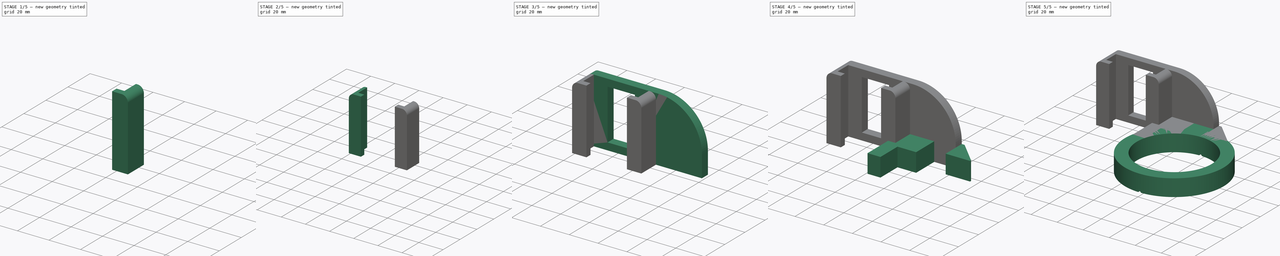
[diagram: build sequence overview — one tinted view per stage of 5, left to right]
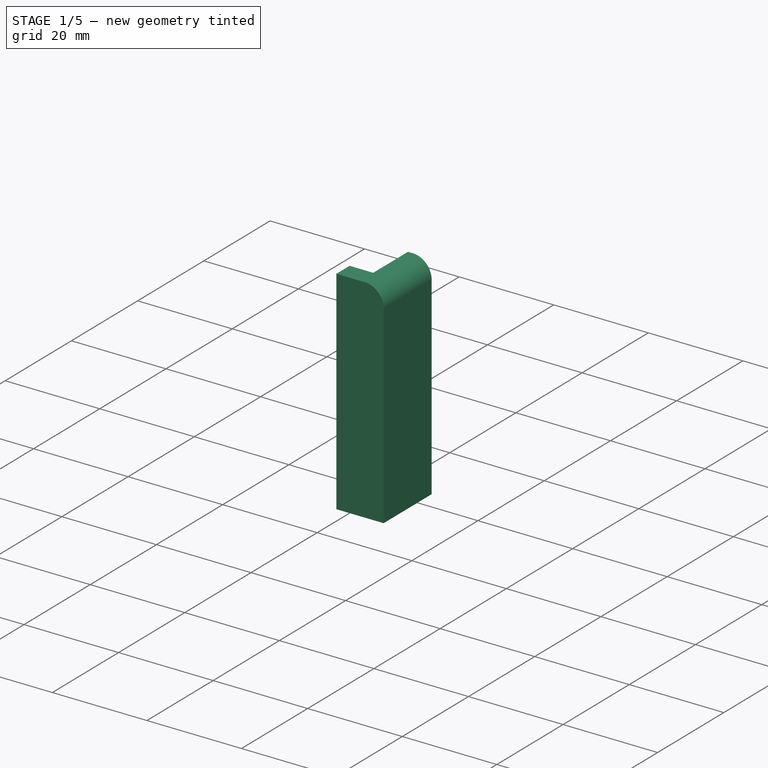
[diagram: stage 1 of 5 — iso view after this stage's code; geometry added in this stage tinted green]
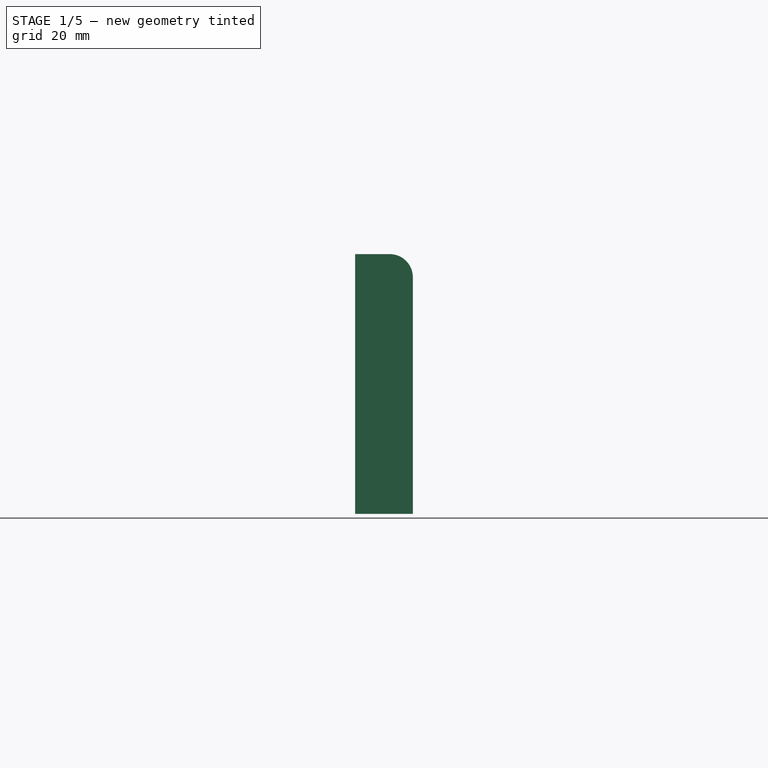
[diagram: stage 1 of 5 — front view after this stage's code; geometry added in this stage tinted green]
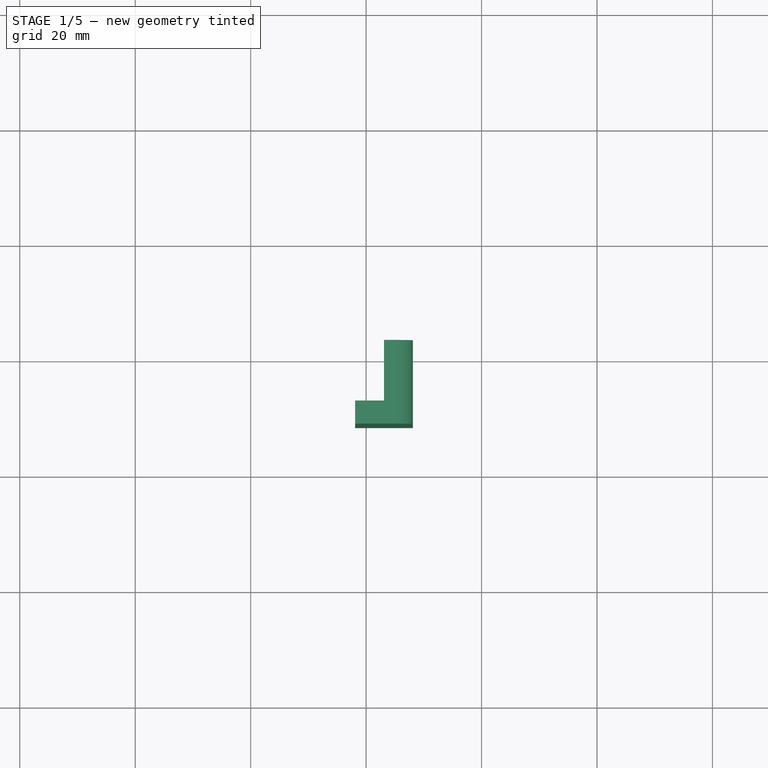
[diagram: stage 1 of 5 — top view after this stage's code; geometry added in this stage tinted green]
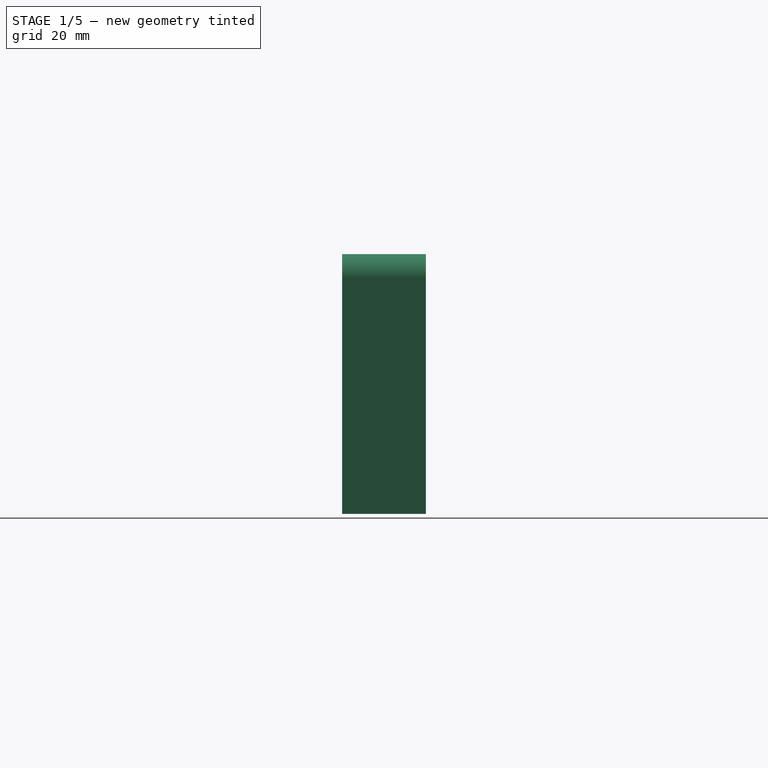
[diagram: stage 1 of 5 — right view after this stage's code; geometry added in this stage tinted green]
FCSTD DOCUMENT  (FreeCAD 0.18R16146 (Git))
Label: CL_piece10_3
License: All rights reserved
LicenseURL: http://en.wikipedia.org/wiki/All_rights_reserved
objects: Part::Box×10, Part::Fillet×6, Sketcher::SketchObject×3, PartDesign::Pocket×2, PartDesign::Pad×1, PartDesign::Body×1, Part::Cut×1, Part::Chamfer×1
note: 28 computed .brp shape members not serialized (recipe doc carries the construction recipe); baked Part::Feature solids carry a one-line shape summary decoded from their .brp

FEATURE [Part::Box] Box003  label="Cube003"
  AttacherType = Attacher::AttachEngine3D
  Height = 45
  Length = 5
  Placement = pos=(-36.9,32.5,0) rot=(0,0,1;0rad)
  Width = 10.5
FEATURE [Part::Box] Box004  label="Cube004"
  AttacherType = Attacher::AttachEngine3D
  Height = 45
  Length = 10
  Placement = pos=(-41.9,28.5,0) rot=(0,0,1;0rad)
  Width = 4
FEATURE [Part::Fillet] Fillet004
  Base = -> Box003
  Edges = 1 edges r=4: [Edge6]
FEATURE [Part::Fillet] Fillet005
  Base = -> Box004
  Edges = 1 edges r=4: [Edge6]
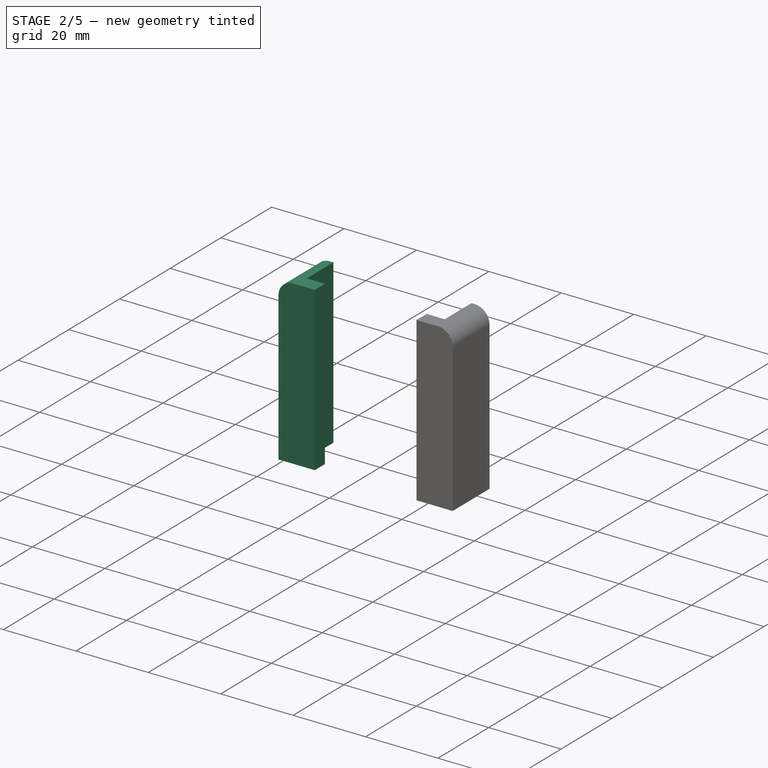
[diagram: stage 2 of 5 — iso view after this stage's code; geometry added in this stage tinted green]
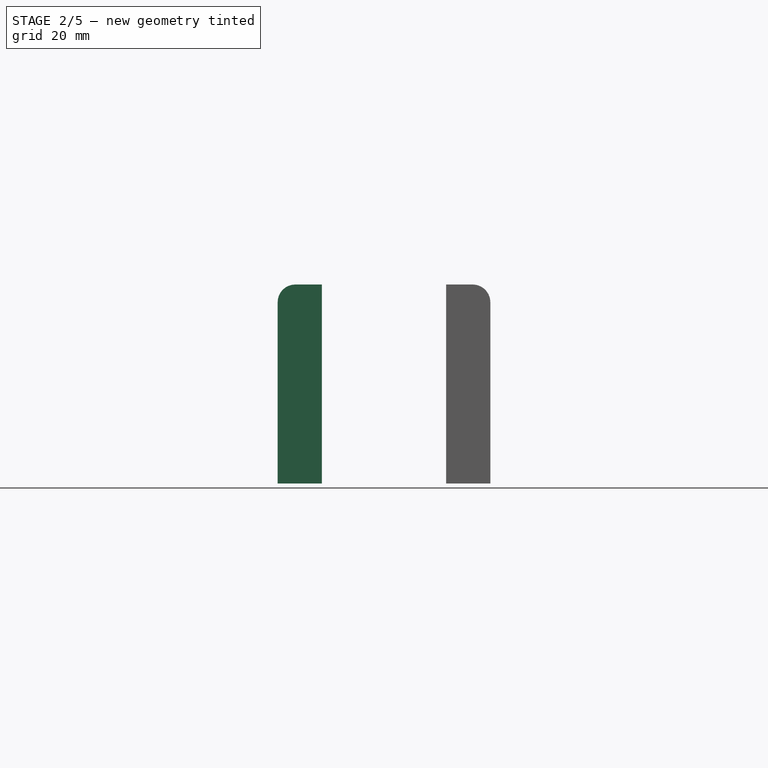
[diagram: stage 2 of 5 — front view after this stage's code; geometry added in this stage tinted green]
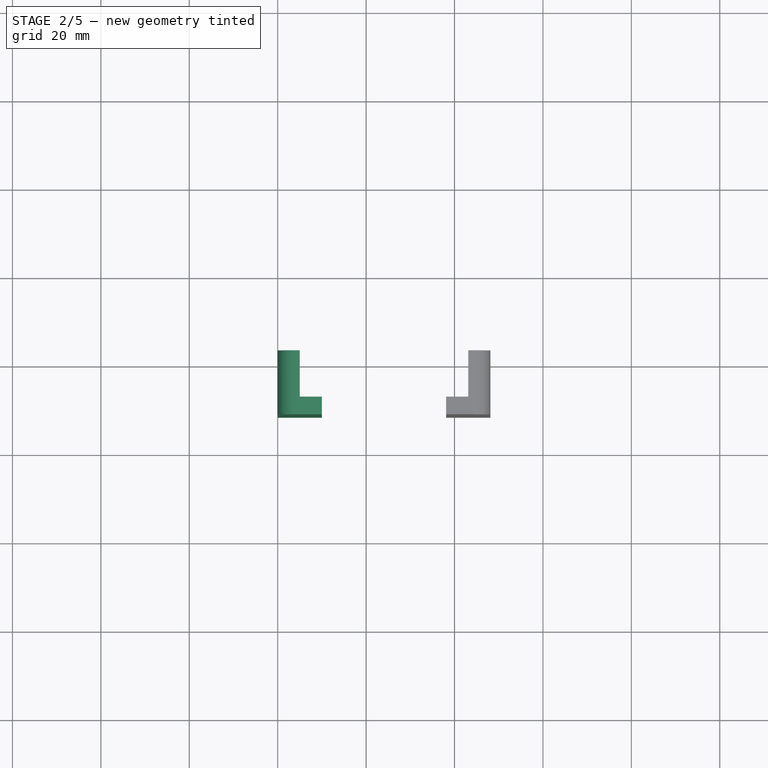
[diagram: stage 2 of 5 — top view after this stage's code; geometry added in this stage tinted green]
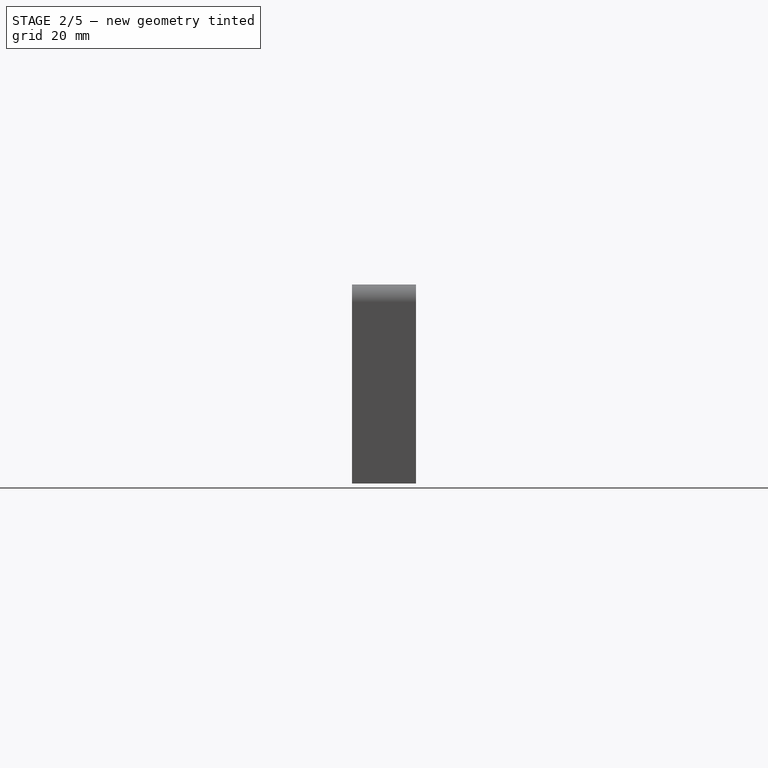
[diagram: stage 2 of 5 — right view after this stage's code; geometry added in this stage tinted green]
FEATURE [Part::Box] Box001  label="Cube001"
  AttacherType = Attacher::AttachEngine3D
  Height = 45
  Length = 5
  Placement = pos=(-80,32.5,0) rot=(0,0,1;0rad)
  Width = 10.5
FEATURE [Part::Box] Box002  label="Cube002"
  AttacherType = Attacher::AttachEngine3D
  Height = 45
  Length = 10
  Placement = pos=(-80,28.5,0) rot=(0,0,1;0rad)
  Width = 4
FEATURE [Part::Fillet] Fillet002
  Base = -> Box001
  Edges = 1 edges r=4: [Edge2]
FEATURE [Part::Fillet] Fillet003
  Base = -> Box002
  Edges = 1 edges r=4: [Edge2]
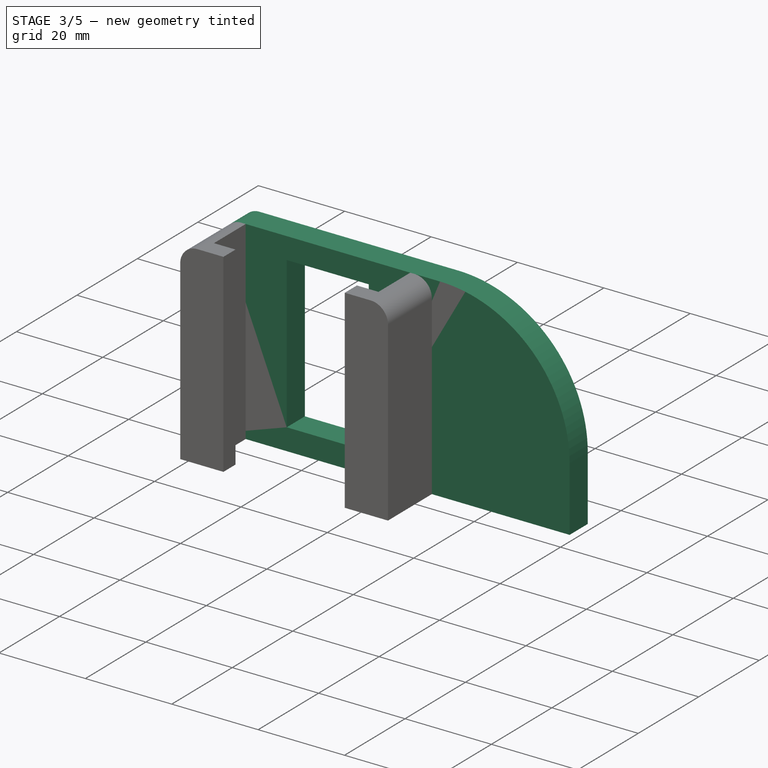
[diagram: stage 3 of 5 — iso view after this stage's code; geometry added in this stage tinted green]
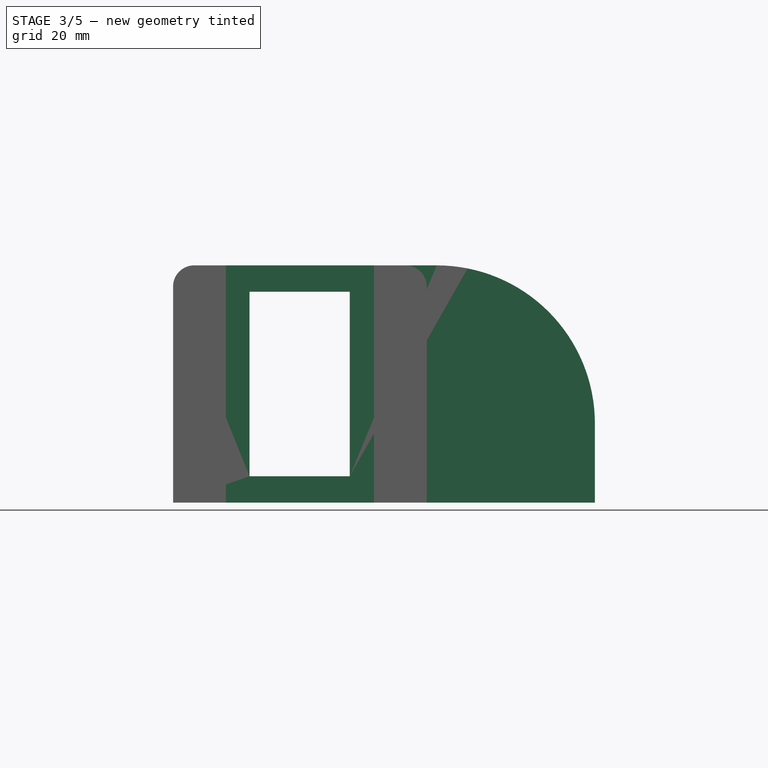
[diagram: stage 3 of 5 — front view after this stage's code; geometry added in this stage tinted green]
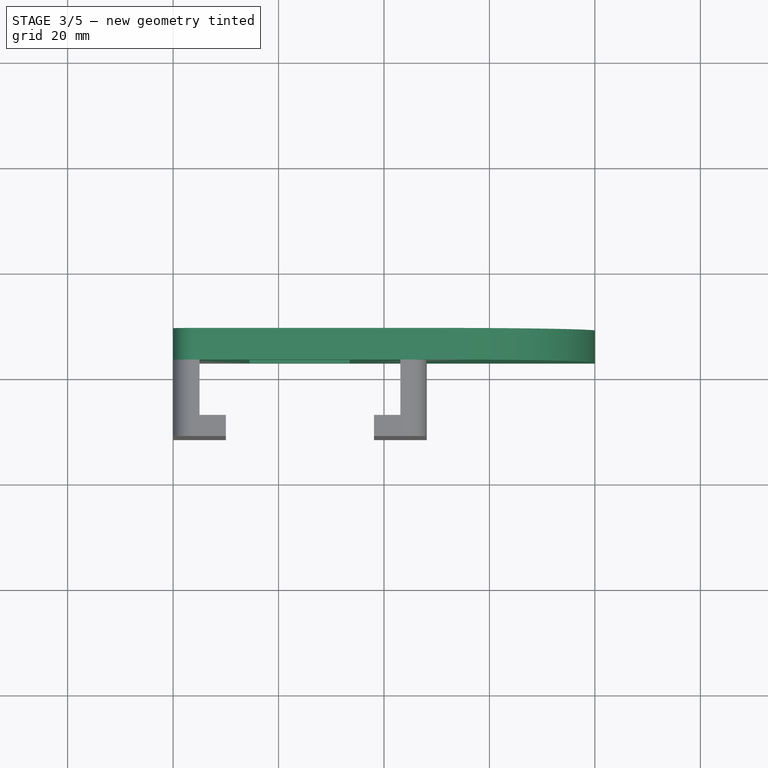
[diagram: stage 3 of 5 — top view after this stage's code; geometry added in this stage tinted green]
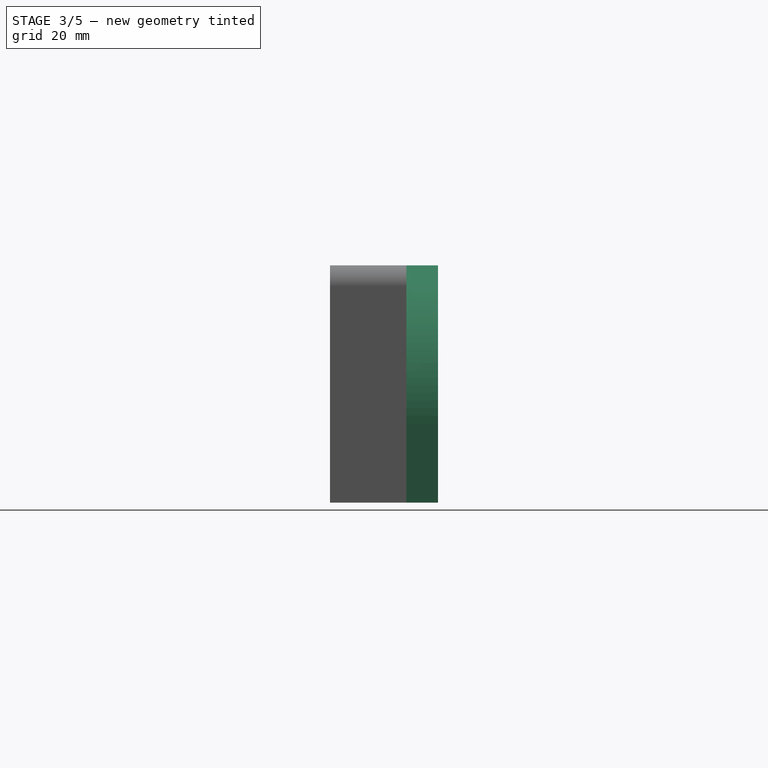
[diagram: stage 3 of 5 — right view after this stage's code; geometry added in this stage tinted green]
FEATURE [PartDesign::Body] Body
  Group = -> [Sketch,Pad,Sketch001,Pocket,Sketch004,Pocket001]
  Origin = -> Origin
  Tip = -> Pocket001
FEATURE [Part::Box] Box  label="Cube"
  AttacherType = Attacher::AttachEngine3D
  Height = 45
  Length = 80
  Placement = pos=(-80,34,0) rot=(0,0,1;0rad)
  Width = 6
FEATURE [Part::Box] Box009  label="Cube009"
  AttacherType = Attacher::AttachEngine3D
  Height = 35
  Length = 19
  Placement = pos=(-65.5,34,5) rot=(0,0,1;0rad)
  Width = 6
FEATURE [Part::Cut] Cut
  Base = -> Box
  Placement = pos=(0,9,0) rot=(0,0,1;0rad)
  Tool = -> Box009
FEATURE [Part::Fillet] Fillet
  Base = -> Cut
  Edges = 1 edges r=30: [Edge13]
FEATURE [Part::Fillet] Fillet001
  Base = -> Fillet
  Edges = 1 edges r=4: [Edge18]
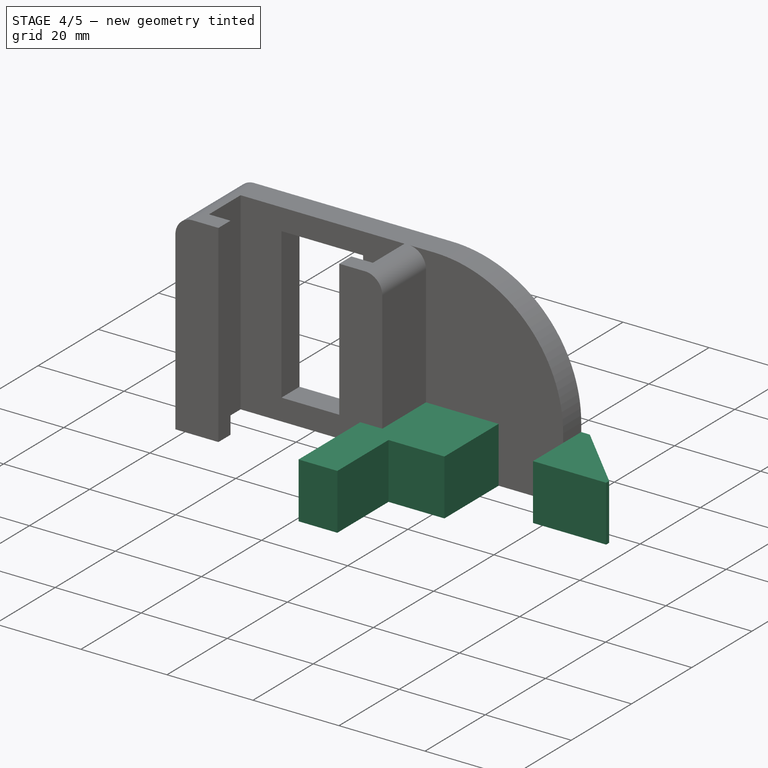
[diagram: stage 4 of 5 — iso view after this stage's code; geometry added in this stage tinted green]
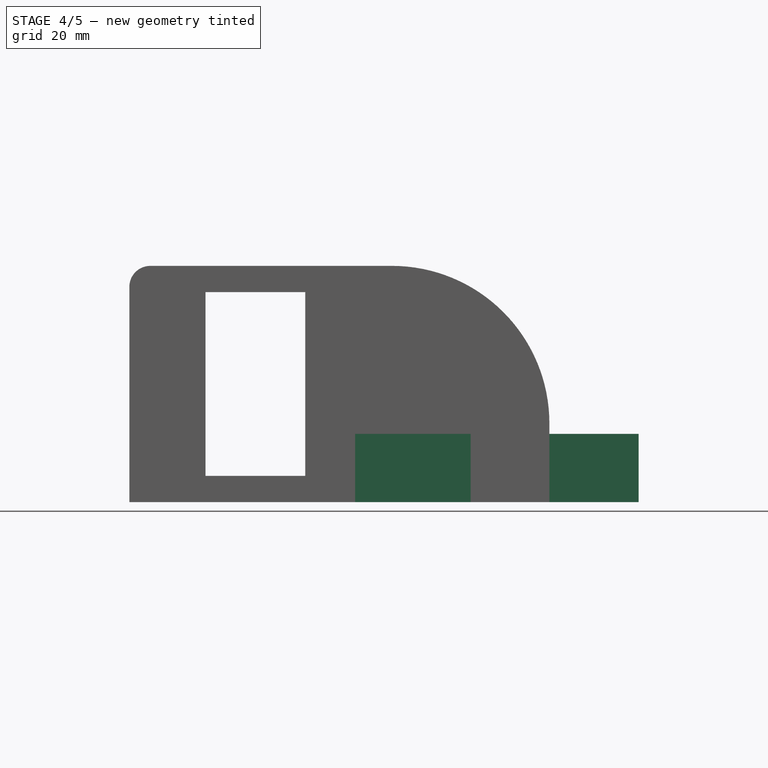
[diagram: stage 4 of 5 — front view after this stage's code; geometry added in this stage tinted green]
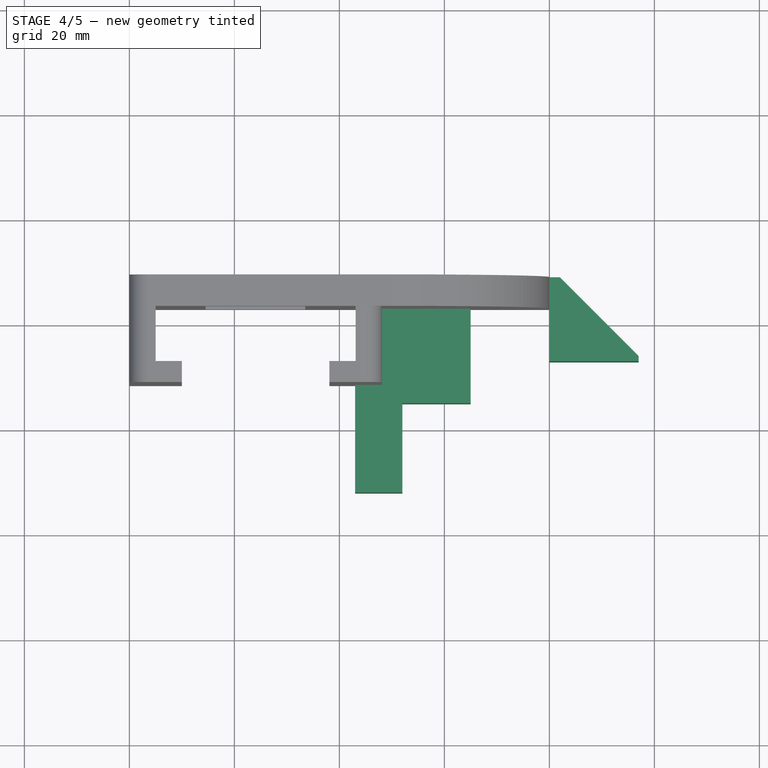
[diagram: stage 4 of 5 — top view after this stage's code; geometry added in this stage tinted green]
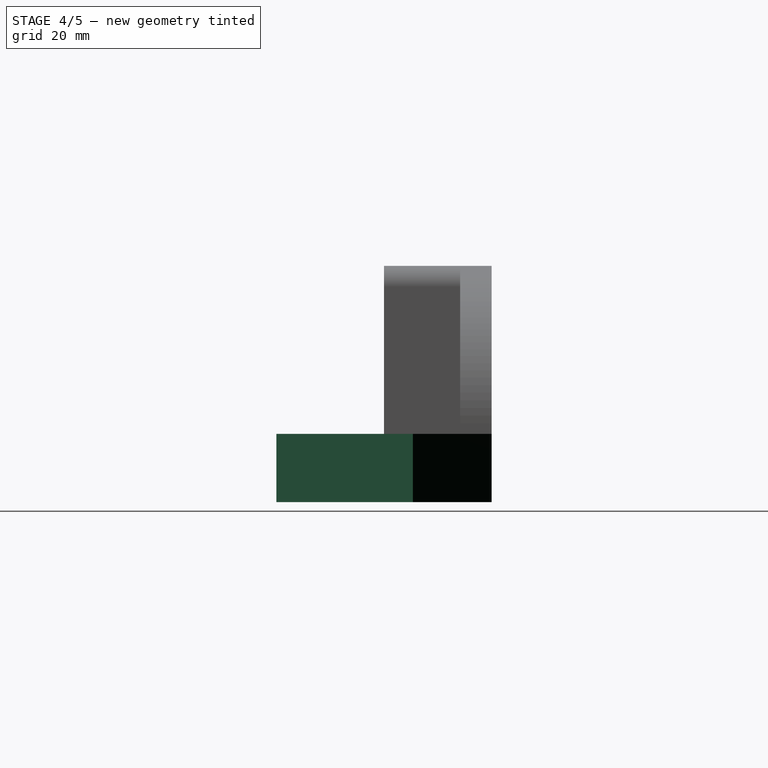
[diagram: stage 4 of 5 — right view after this stage's code; geometry added in this stage tinted green]
FEATURE [Part::Box] Box006  label="Cube006"
  AttacherType = Attacher::AttachEngine3D
  Height = 13
  Length = 17
  Placement = pos=(0,33,0) rot=(0,0,1;0rad)
  Width = 16
FEATURE [Part::Box] Box007  label="Cube007"
  AttacherType = Attacher::AttachEngine3D
  Height = 13
  Length = 17
  Placement = pos=(-32,25,0) rot=(0,0,1;0rad)
  Width = 18
FEATURE [Part::Box] Box008  label="Cube008"
  AttacherType = Attacher::AttachEngine3D
  Height = 13
  Length = 9
  Placement = pos=(-37,8,0) rot=(0,0,1;0rad)
  Width = 21
FEATURE [Part::Chamfer] Chamfer
  Base = -> Box006
  Edges = 1 edges r=15: [Edge7]
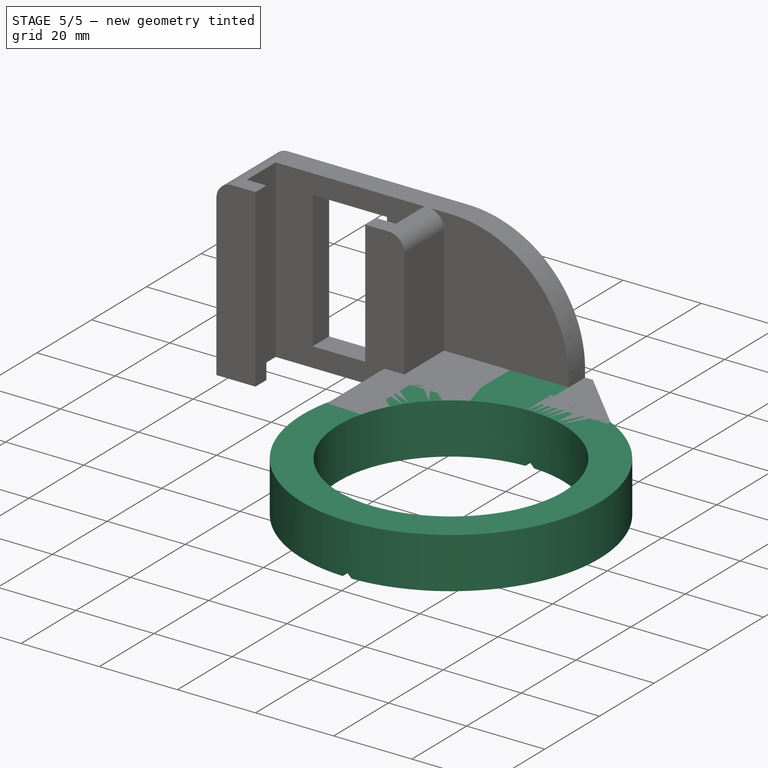
[diagram: stage 5 of 5 — iso view after this stage's code; geometry added in this stage tinted green]
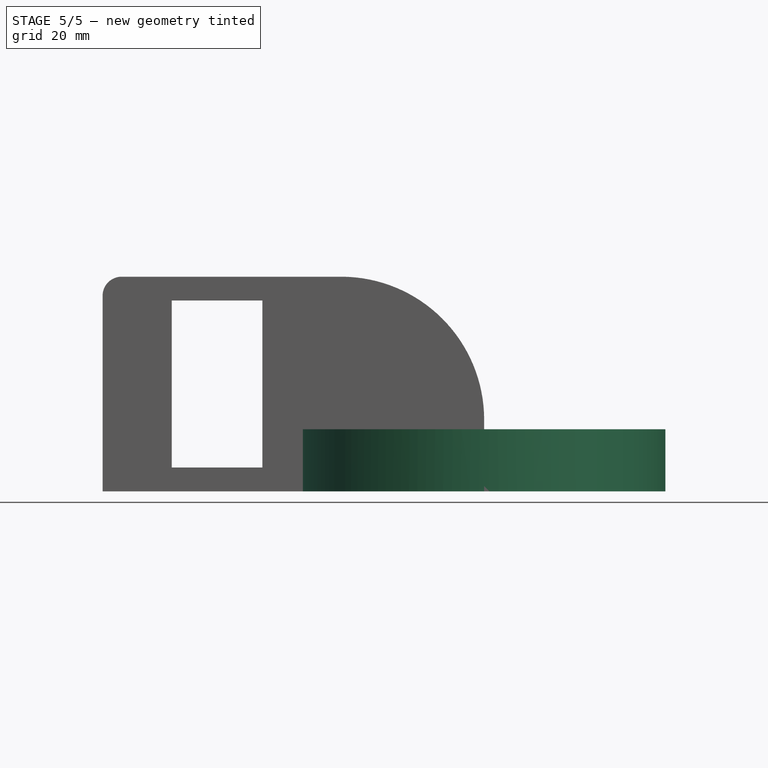
[diagram: stage 5 of 5 — front view after this stage's code; geometry added in this stage tinted green]
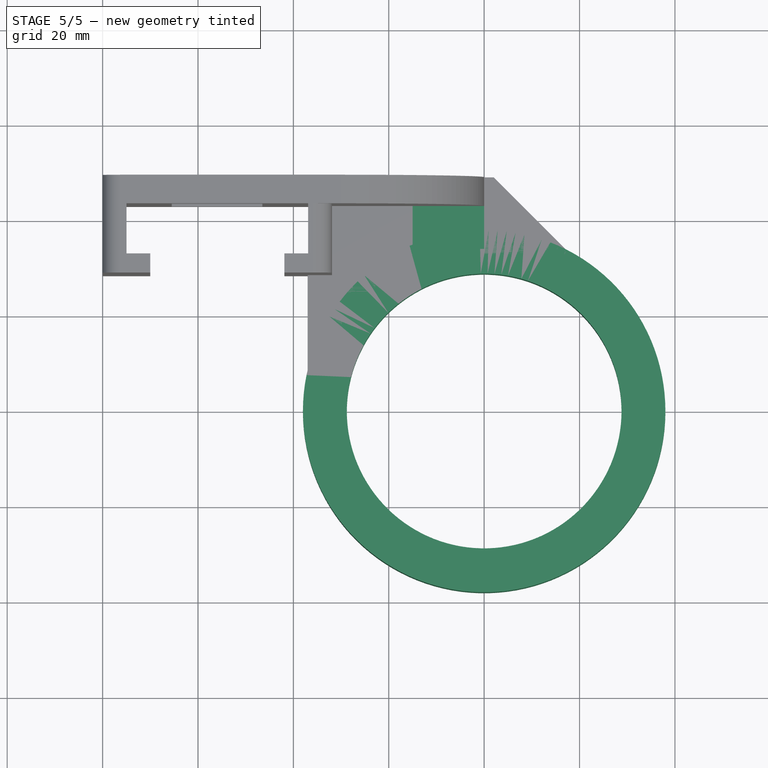
[diagram: stage 5 of 5 — top view after this stage's code; geometry added in this stage tinted green]
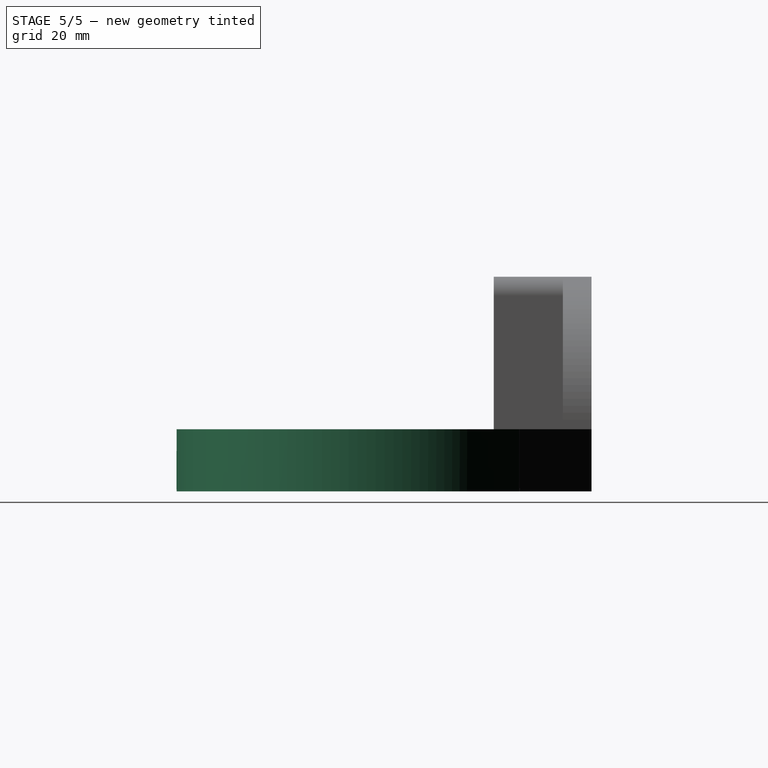
[diagram: stage 5 of 5 — right view after this stage's code; geometry added in this stage tinted green]
FEATURE [Sketcher::SketchObject] Sketch
  MapMode = 5
  Support = -> [XY_Plane]
  sketch-geometry (1):
    g0: Circle CenterX=0 CenterY=0 CenterZ=0 NormalX=0 NormalY=0 NormalZ=1 AngleXU=0 Radius=38
  constraints (2):
    c: Radius(g0) = 38
    c: Coincident(g0,g-1)
FEATURE [PartDesign::Pad] Pad
  Length = 13
  Length2 = 100
  Profile = -> Sketch
  Type = 0
FEATURE [Sketcher::SketchObject] Sketch001
  MapMode = 5
  Placement = pos=(0,0,13) rot=(0,0,1;0rad)
  Support = -> [Pad]
  sketch-geometry (1):
    g0: Circle CenterX=0 CenterY=0 CenterZ=0 NormalX=0 NormalY=0 NormalZ=1 AngleXU=0 Radius=28.8
  constraints (2):
    c: Radius(g0) = 28.8
    c: Coincident(g-1,g0)
FEATURE [PartDesign::Pocket] Pocket
  BaseFeature = -> Pad
  Length = 5
  Length2 = 100
  Profile = -> Sketch001
  Type = 1
FEATURE [Sketcher::SketchObject] Sketch004
  MapMode = 5
  Placement = pos=(0,0,0) rot=(1,0,0;1.5708rad)
  Support = -> [XZ_Plane]
  sketch-geometry (3):
    g0: LineSegment StartX=1.5 StartY=-0.371425 StartZ=0 EndX=0 EndY=1.12857 EndZ=0
    g1: LineSegment StartX=0 StartY=1.12857 StartZ=0 EndX=-1.5 EndY=-0.371425 EndZ=0
    g2: LineSegment StartX=-1.5 StartY=-0.371425 StartZ=0 EndX=1.5 EndY=-0.371425 EndZ=0
  constraints (7):
    c: Coincident(g0,g1)
    c: Coincident(g1,g2)
    c: Coincident(g2,g0)
    c: Distance(g2) = 3
    c: Symmetric(g0,g1,g-2)
    c: PointOnObject(g0,g-2)
    c: Angle(g1,g0) = 1.5708
FEATURE [PartDesign::Pocket] Pocket001
  BaseFeature = -> Pocket
  Length = 5
  Length2 = 100
  Midplane = true
  Profile = -> Sketch004
  Reversed = true
  Type = 1
FEATURE [Part::Box] Box005  label="Cube005"
  AttacherType = Attacher::AttachEngine3D
  Height = 13
  Length = 15
  Placement = pos=(-15,34,0) rot=(0,0,1;0rad)
  Width = 9
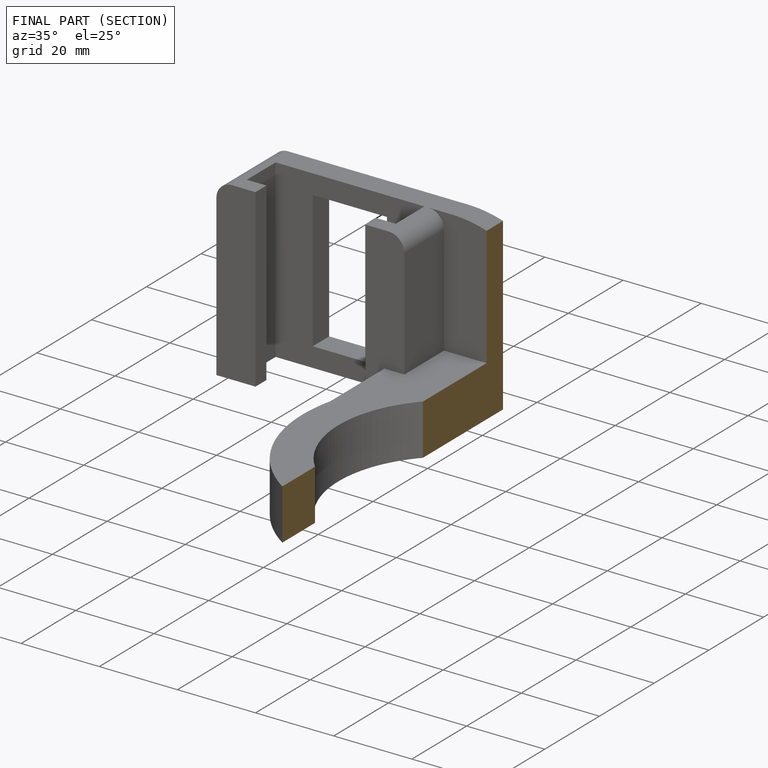
[diagram: finished part — half-section view (interior)]
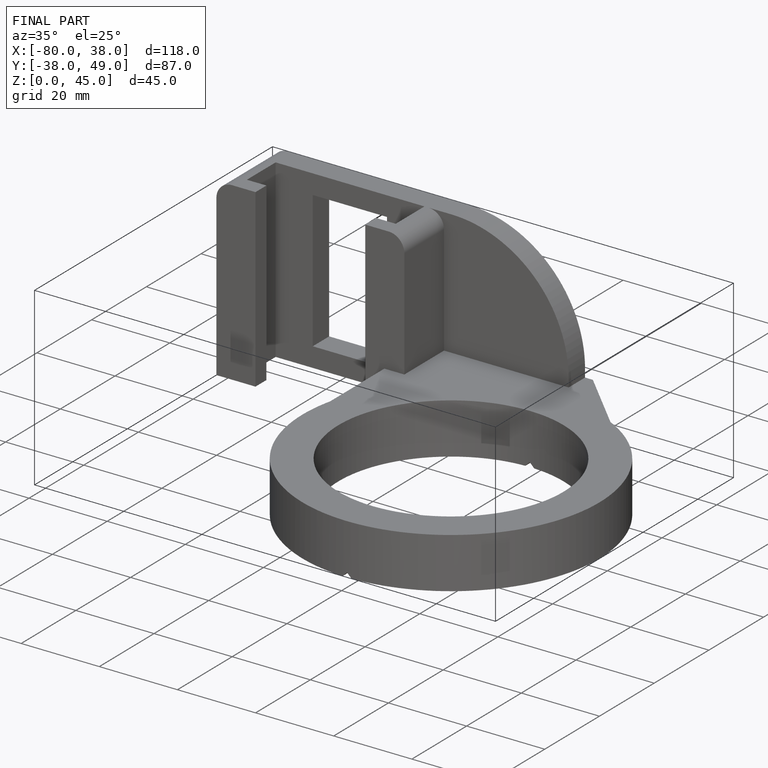
[diagram: finished part — iso view with bounding-box wireframe]
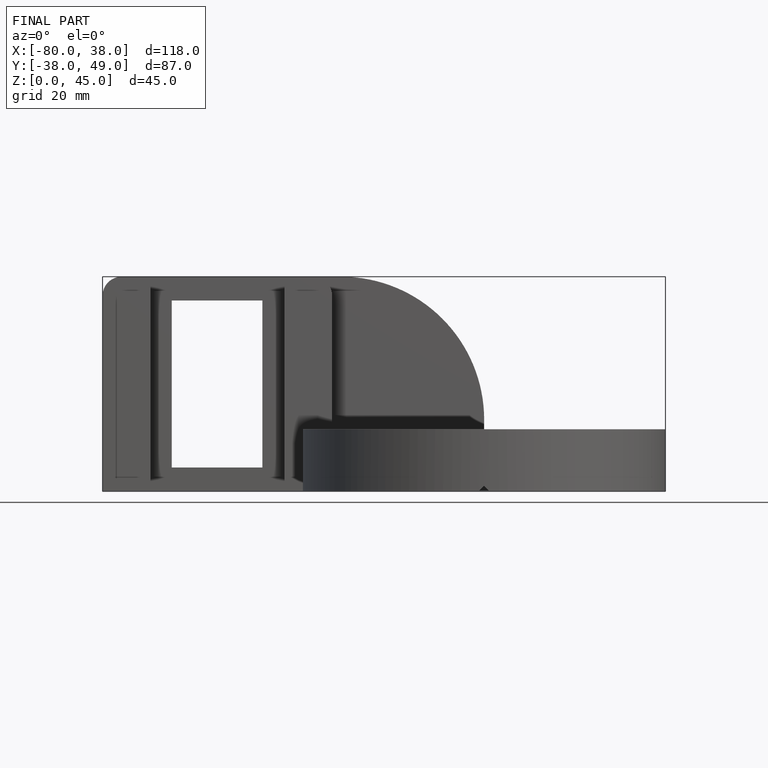
[diagram: finished part — front view with bounding-box wireframe]
